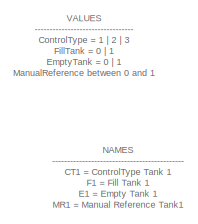
[diagram: root canvas - part 1/2, top left region]
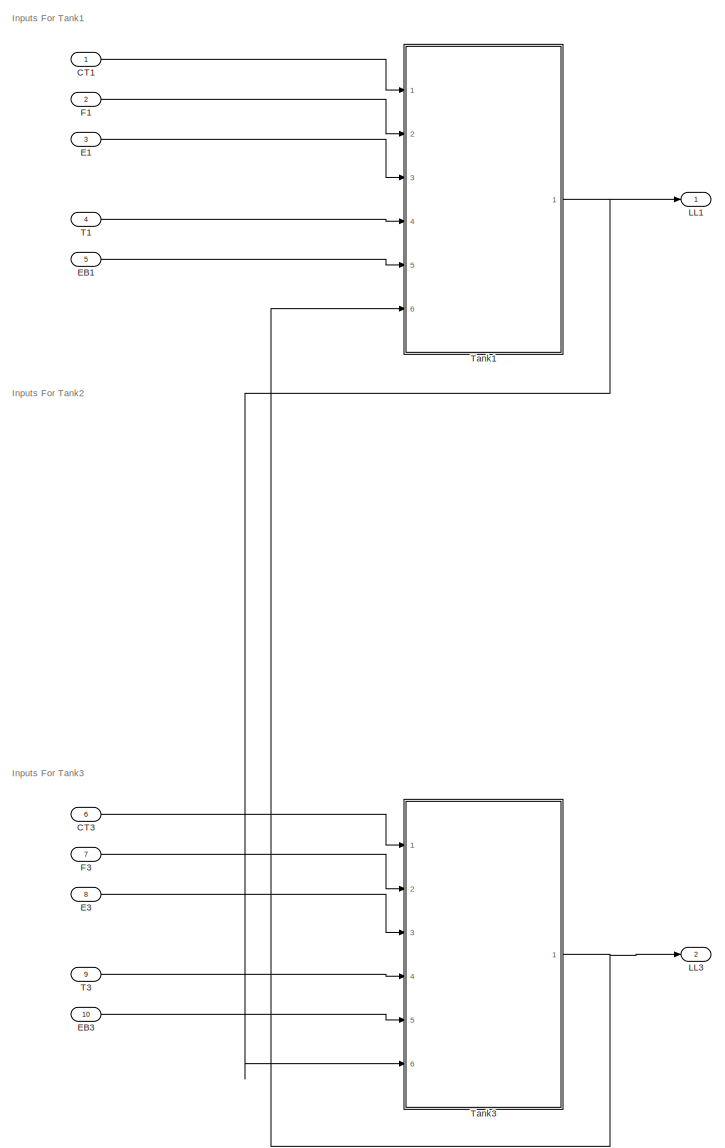
[diagram: root canvas - part 2/2, right side, full height]
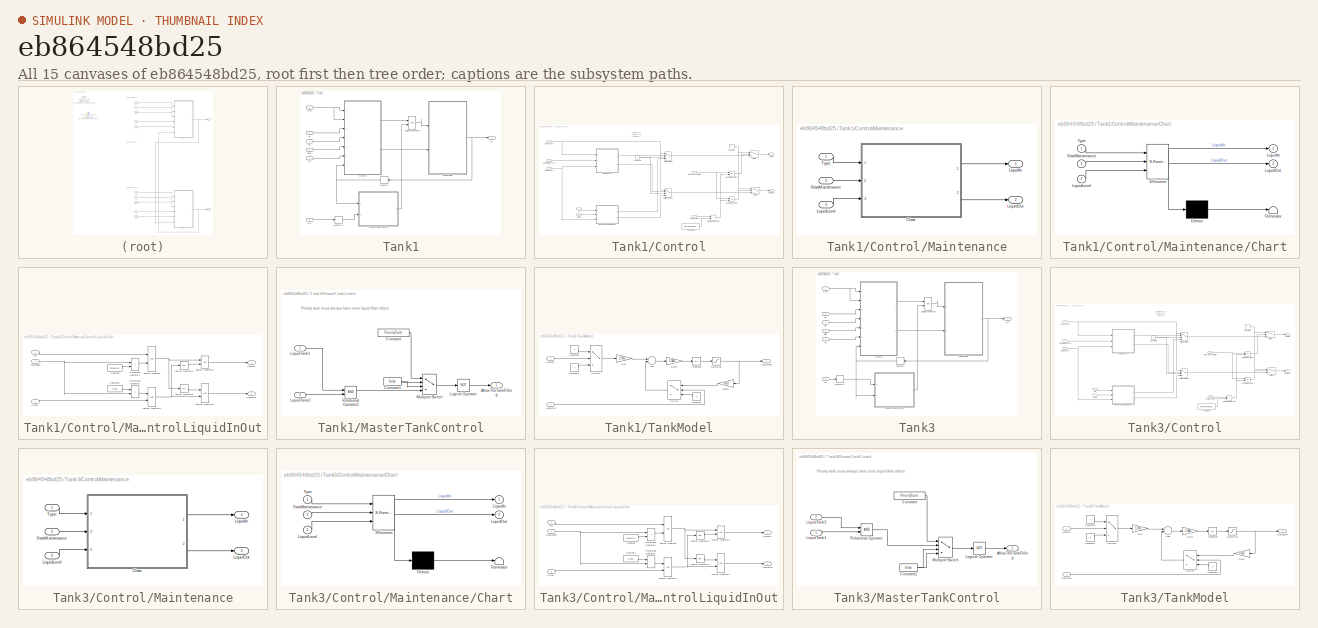
[diagram: thumbnail index - all 15 canvases of the model, root first then tree order]
MODEL slx_eb864548bd25
KIND model
CONFIG AbsTol = auto
CONFIG EnableMultiTasking = off
CONFIG FixedStep = 0.1
CONFIG MaxStep = auto
CONFIG MinStep = auto
CONFIG RelTol = 1e-3
CONFIG SampleTimeConstraint = Unconstrained
CONFIG Solver = FixedStepAuto
CONFIG SolverName = FixedStepAuto
CONFIG StartTime = 0.0
CONFIG StopTime = 300
BLOCK [Inport] CT1
  IconDisplay = Port number
BLOCK [Inport] CT3
  IconDisplay = Port number
  Port = 6
BLOCK [Inport] E1
  IconDisplay = Port number
  Port = 3
BLOCK [Inport] E3
  IconDisplay = Port number
  Port = 8
BLOCK [Inport] EB1
  IconDisplay = Port number
  Port = 5
BLOCK [Inport] EB3
  IconDisplay = Port number
  Port = 10
BLOCK [Inport] F1
  IconDisplay = Port number
  Port = 2
BLOCK [Inport] F3
  IconDisplay = Port number
  Port = 7
BLOCK [Outport] LL1
  IconDisplay = Port number
BLOCK [Outport] LL3
  IconDisplay = Port number
  Port = 2
BLOCK [Inport] T1
  IconDisplay = Port number
  Port = 4
BLOCK [Inport] T3
  IconDisplay = Port number
  Port = 9
BLOCK [SubSystem] Tank1
  Ports = [6, 1]
  RequestExecContextInheritance = off
BLOCK [Inport] Tank1/CT1
  IconDisplay = Port number
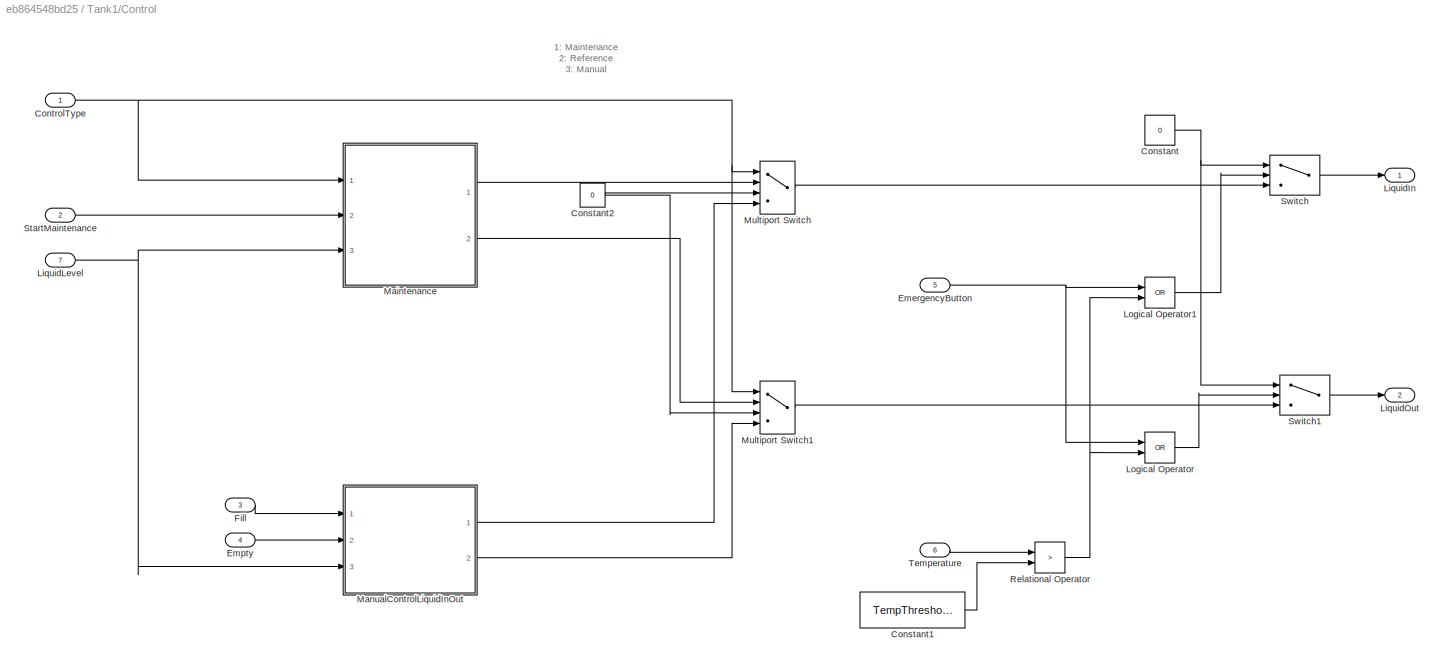
BLOCK [SubSystem] Tank1/Control
  Ports = [7, 2]
  RequestExecContextInheritance = off
BLOCK [Constant] Tank1/Control/Constant
  Value = 0
BLOCK [Constant] Tank1/Control/Constant1
  Value = TempThreshold
BLOCK [Constant] Tank1/Control/Constant2
  Value = 0
BLOCK [Inport] Tank1/Control/ControlType
  IconDisplay = Port number
BLOCK [Inport] Tank1/Control/EmergencyButton
  IconDisplay = Port number
  Port = 5
BLOCK [Inport] Tank1/Control/Empty
  IconDisplay = Port number
  Port = 4
BLOCK [Inport] Tank1/Control/Fill
  IconDisplay = Port number
  Port = 3
BLOCK [Outport] Tank1/Control/LiquidIn
  IconDisplay = Port number
BLOCK [Inport] Tank1/Control/LiquidLevel
  IconDisplay = Port number
  Port = 7
BLOCK [Outport] Tank1/Control/LiquidOut
  IconDisplay = Port number
  Port = 2
BLOCK [Logic] Tank1/Control/Logical Operator
  AllPortsSameDT = off
  Operator = OR
  OutDataTypeStr = boolean
  Ports = [2, 1]
BLOCK [Logic] Tank1/Control/Logical Operator1
  AllPortsSameDT = off
  Operator = OR
  OutDataTypeStr = boolean
  Ports = [2, 1]
BLOCK [SubSystem] Tank1/Control/Maintenance
  Ports = [3, 2]
  RequestExecContextInheritance = off
BLOCK [SubSystem] Tank1/Control/Maintenance/Chart
  ErrorFcn = Stateflow.Translate.translate
  PermitHierarchicalResolution = ExplicitOnly
  Ports = [3, 2]
  RequestExecContextInheritance = off
  SFBlockType = Chart
  TreatAsAtomicUnit = on
BLOCK [Demux] Tank1/Control/Maintenance/Chart/ Demux 
  Outputs = 1
  Ports = [1, 1]
BLOCK [S-Function] Tank1/Control/Maintenance/Chart/ SFunction 
  EnableBusSupport = on
  FunctionName = sf_sfun
  Parameters = hmax
  PortCounts = [3 3]
  Ports = [3, 3]
  SFcnIsStateOwnerBlock = off
  SFunctionDeploymentMode = off
  Tag = Stateflow S-Function c00005 3
BLOCK [Terminator] Tank1/Control/Maintenance/Chart/ Terminator 
BLOCK [Outport] Tank1/Control/Maintenance/Chart/LiquidIn
  IconDisplay = Port number
BLOCK [Inport] Tank1/Control/Maintenance/Chart/LiquidLevel
  IconDisplay = Port number
  Port = 3
BLOCK [Outport] Tank1/Control/Maintenance/Chart/LiquidOut
  IconDisplay = Port number
  Port = 2
BLOCK [Inport] Tank1/Control/Maintenance/Chart/StartMaintenance
  IconDisplay = Port number
  Port = 2
BLOCK [Inport] Tank1/Control/Maintenance/Chart/Type
  IconDisplay = Port number
BLOCK [Outport] Tank1/Control/Maintenance/LiquidIn
  IconDisplay = Port number
BLOCK [Inport] Tank1/Control/Maintenance/LiquidLevel
  IconDisplay = Port number
  Port = 3
BLOCK [Outport] Tank1/Control/Maintenance/LiquidOut
  IconDisplay = Port number
  Port = 2
BLOCK [Inport] Tank1/Control/Maintenance/StartMaintenance
  IconDisplay = Port number
  Port = 2
BLOCK [Inport] Tank1/Control/Maintenance/Type
  IconDisplay = Port number
BLOCK [SubSystem] Tank1/Control/ManualControlLiquidInOut
  Ports = [3, 2]
  RequestExecContextInheritance = off
BLOCK [Constant] Tank1/Control/ManualControlLiquidInOut/Constant
  Value = hmax*0.9
BLOCK [Constant] Tank1/Control/ManualControlLiquidInOut/Constant1
  Value = 0.001
BLOCK [Inport] Tank1/Control/ManualControlLiquidInOut/Empty
  IconDisplay = Port number
  Port = 2
BLOCK [Inport] Tank1/Control/ManualControlLiquidInOut/Fill
  IconDisplay = Port number
BLOCK [Outport] Tank1/Control/ManualControlLiquidInOut/LiquidIn
  IconDisplay = Port number
BLOCK [Inport] Tank1/Control/ManualControlLiquidInOut/LiquidLevel
  IconDisplay = Port number
  Port = 3
BLOCK [Outport] Tank1/Control/ManualControlLiquidInOut/LiquidOut
  IconDisplay = Port number
  Port = 2
BLOCK [Logic] Tank1/Control/ManualControlLiquidInOut/Logical Operator
  AllPortsSameDT = off
  OutDataTypeStr = boolean
  Ports = [2, 1]
BLOCK [Logic] Tank1/Control/ManualControlLiquidInOut/Logical Operator1
  AllPortsSameDT = off
  OutDataTypeStr = boolean
  Ports = [2, 1]
BLOCK [Logic] Tank1/Control/ManualControlLiquidInOut/Logical Operator2
  AllPortsSameDT = off
  OutDataTypeStr = boolean
  Ports = [2, 1]
BLOCK [Logic] Tank1/Control/ManualControlLiquidInOut/Logical Operator3
  AllPortsSameDT = off
  Operator = NOT
  OutDataTypeStr = boolean
  Ports = [1, 1]
BLOCK [Logic] Tank1/Control/ManualControlLiquidInOut/Logical Operator4
  AllPortsSameDT = off
  OutDataTypeStr = boolean
  Ports = [2, 1]
BLOCK [Logic] Tank1/Control/ManualControlLiquidInOut/Logical Operator5
  AllPortsSameDT = off
  Operator = NOT
  OutDataTypeStr = boolean
  Ports = [1, 1]
BLOCK [RelationalOperator] Tank1/Control/ManualControlLiquidInOut/Relational Operator1
  InputSameDT = off
  Operator = <
  OutDataTypeStr = boolean
  Ports = [2, 1]
  RndMeth = Simplest
BLOCK [RelationalOperator] Tank1/Control/ManualControlLiquidInOut/Relational Operator2
  InputSameDT = off
  Operator = <
  OutDataTypeStr = boolean
  Ports = [2, 1]
  RndMeth = Simplest
BLOCK [MultiPortSwitch] Tank1/Control/Multiport Switch
  InputSameDT = off
  Ports = [4, 1]
  SaturateOnIntegerOverflow = off
BLOCK [MultiPortSwitch] Tank1/Control/Multiport Switch1
  InputSameDT = off
  Ports = [4, 1]
  SaturateOnIntegerOverflow = off
BLOCK [RelationalOperator] Tank1/Control/Relational Operator
  InputSameDT = off
  Operator = >
  OutDataTypeStr = boolean
  Ports = [2, 1]
  RndMeth = Simplest
BLOCK [Inport] Tank1/Control/StartMaintenance
  IconDisplay = Port number
  Port = 2
BLOCK [Switch] Tank1/Control/Switch
  Criteria = u2 > Threshold
  InputSameDT = off
  SaturateOnIntegerOverflow = off
BLOCK [Switch] Tank1/Control/Switch1
  Criteria = u2 > Threshold
  InputSameDT = off
  SaturateOnIntegerOverflow = off
BLOCK [Inport] Tank1/Control/Temperature
  IconDisplay = Port number
  Port = 6
BLOCK [Inport] Tank1/E1
  IconDisplay = Port number
  Port = 3
BLOCK [Inport] Tank1/EB1
  IconDisplay = Port number
  Port = 5
BLOCK [Inport] Tank1/F1
  IconDisplay = Port number
  Port = 2
BLOCK [Outport] Tank1/LL1
  IconDisplay = Port number
BLOCK [Inport] Tank1/LL3
  IconDisplay = Port number
  Port = 6
BLOCK [Logic] Tank1/Logical Operator
  AllPortsSameDT = off
  OutDataTypeStr = boolean
  Ports = [2, 1]
BLOCK [SubSystem] Tank1/MasterTankControl
  Ports = [2, 1]
  RequestExecContextInheritance = off
BLOCK [Outport] Tank1/MasterTankControl/AllowTheTankFilling
  IconDisplay = Port number
BLOCK [Constant] Tank1/MasterTankControl/Constant
  Value = PriorityTank
BLOCK [Constant] Tank1/MasterTankControl/Constant1
  Value = false
BLOCK [Inport] Tank1/MasterTankControl/LiquidTank1
  IconDisplay = Port number
BLOCK [Inport] Tank1/MasterTankControl/LiquidTank3
  IconDisplay = Port number
  Port = 2
BLOCK [Logic] Tank1/MasterTankControl/Logical Operator
  AllPortsSameDT = off
  Operator = NOT
  OutDataTypeStr = boolean
  Ports = [1, 1]
BLOCK [MultiPortSwitch] Tank1/MasterTankControl/Multiport Switch
  InputSameDT = off
  Ports = [4, 1]
  SaturateOnIntegerOverflow = off
BLOCK [RelationalOperator] Tank1/MasterTankControl/Relational Operator1
  InputSameDT = off
  OutDataTypeStr = boolean
  Ports = [2, 1]
  RndMeth = Simplest
BLOCK [Memory] Tank1/Memory
BLOCK [Memory] Tank1/Memory2
BLOCK [Inport] Tank1/T1
  IconDisplay = Port number
  Port = 4
BLOCK [SubSystem] Tank1/TankModel
  Ports = [2, 1]
  RequestExecContextInheritance = off
BLOCK [Sum] Tank1/TankModel/Add1
  InputSameDT = off
  Inputs = +-
  OutDataTypeStr = Inherit: Inherit via internal rule
  Ports = [2, 1]
  SaturateOnIntegerOverflow = off
BLOCK [Constant] Tank1/TankModel/Constant1
  Value = 0
BLOCK [Constant] Tank1/TankModel/Constant2
  Value = 0
BLOCK [Constant] Tank1/TankModel/Constant3
BLOCK [Gain] Tank1/TankModel/Gain
  Gain = 1/R1
  OutDataTypeStr = Inherit: Inherit via internal rule
  ParamDataTypeStr = Inherit: Inherit via internal rule
  SaturateOnIntegerOverflow = off
BLOCK [Gain] Tank1/TankModel/Gain1
  Gain = 1/A1
  OutDataTypeStr = Inherit: Inherit via internal rule
  ParamDataTypeStr = Inherit: Inherit via internal rule
  SaturateOnIntegerOverflow = off
BLOCK [Gain] Tank1/TankModel/Gain2
  Gain = 1/R2
  OutDataTypeStr = Inherit: Inherit via internal rule
  ParamDataTypeStr = Inherit: Inherit via internal rule
  SaturateOnIntegerOverflow = off
BLOCK [Integrator] Tank1/TankModel/Integrator
  Ports = [1, 1]
BLOCK [Inport] Tank1/TankModel/LiquidIn
  IconDisplay = Port number
BLOCK [Outport] Tank1/TankModel/LiquidLevel
  IconDisplay = Port number
BLOCK [Inport] Tank1/TankModel/LiquidOut
  IconDisplay = Port number
  Port = 2
BLOCK [Saturate] Tank1/TankModel/Saturation
  InputPortMap = u0
  LowerLimit = 0
  Ports = [1, 1]
  UpperLimit = hmax
BLOCK [Switch] Tank1/TankModel/Switch
  Criteria = u2 ~= 0
  InputSameDT = off
  SaturateOnIntegerOverflow = off
BLOCK [Switch] Tank1/TankModel/Switch1
  Criteria = u2 ~= 0
  InputSameDT = off
  SaturateOnIntegerOverflow = off
BLOCK [SubSystem] Tank3
  Ports = [6, 1]
  RequestExecContextInheritance = off
BLOCK [Inport] Tank3/CT3
  IconDisplay = Port number
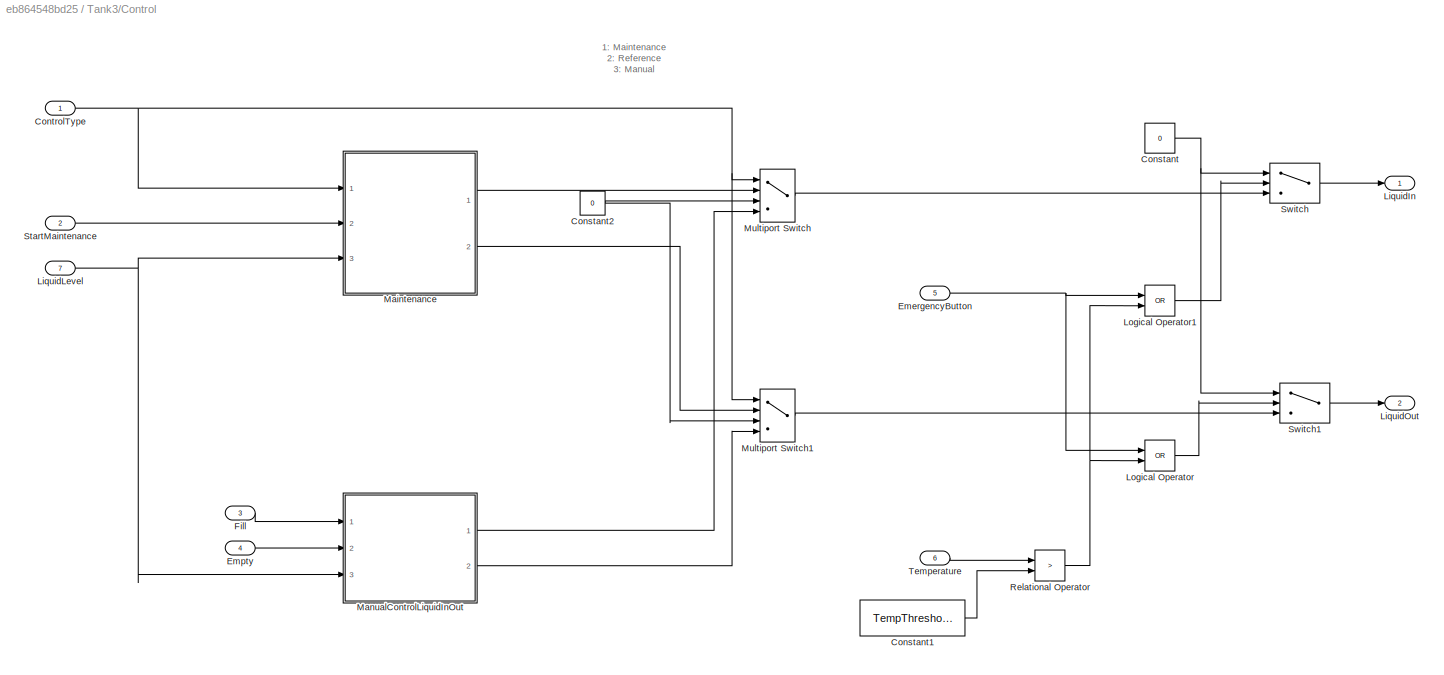
BLOCK [SubSystem] Tank3/Control
  Ports = [7, 2]
  RequestExecContextInheritance = off
BLOCK [Constant] Tank3/Control/Constant
  Value = 0
BLOCK [Constant] Tank3/Control/Constant1
  Value = TempThreshold
BLOCK [Constant] Tank3/Control/Constant2
  Value = 0
BLOCK [Inport] Tank3/Control/ControlType
  IconDisplay = Port number
BLOCK [Inport] Tank3/Control/EmergencyButton
  IconDisplay = Port number
  Port = 5
BLOCK [Inport] Tank3/Control/Empty
  IconDisplay = Port number
  Port = 4
BLOCK [Inport] Tank3/Control/Fill
  IconDisplay = Port number
  Port = 3
BLOCK [Outport] Tank3/Control/LiquidIn
  IconDisplay = Port number
BLOCK [Inport] Tank3/Control/LiquidLevel
  IconDisplay = Port number
  Port = 7
BLOCK [Outport] Tank3/Control/LiquidOut
  IconDisplay = Port number
  Port = 2
BLOCK [Logic] Tank3/Control/Logical Operator
  AllPortsSameDT = off
  Operator = OR
  OutDataTypeStr = boolean
  Ports = [2, 1]
BLOCK [Logic] Tank3/Control/Logical Operator1
  AllPortsSameDT = off
  Operator = OR
  OutDataTypeStr = boolean
  Ports = [2, 1]
BLOCK [SubSystem] Tank3/Control/Maintenance
  Ports = [3, 2]
  RequestExecContextInheritance = off
BLOCK [SubSystem] Tank3/Control/Maintenance/Chart
  ErrorFcn = Stateflow.Translate.translate
  PermitHierarchicalResolution = ExplicitOnly
  Ports = [3, 2]
  RequestExecContextInheritance = off
  SFBlockType = Chart
  TreatAsAtomicUnit = on
BLOCK [Demux] Tank3/Control/Maintenance/Chart/ Demux 
  Outputs = 1
  Ports = [1, 1]
BLOCK [S-Function] Tank3/Control/Maintenance/Chart/ SFunction 
  EnableBusSupport = on
  FunctionName = sf_sfun
  Parameters = hmax
  PortCounts = [3 3]
  Ports = [3, 3]
  SFcnIsStateOwnerBlock = off
  SFunctionDeploymentMode = off
  Tag = Stateflow S-Function c00005 1
BLOCK [Terminator] Tank3/Control/Maintenance/Chart/ Terminator 
BLOCK [Outport] Tank3/Control/Maintenance/Chart/LiquidIn
  IconDisplay = Port number
BLOCK [Inport] Tank3/Control/Maintenance/Chart/LiquidLevel
  IconDisplay = Port number
  Port = 3
BLOCK [Outport] Tank3/Control/Maintenance/Chart/LiquidOut
  IconDisplay = Port number
  Port = 2
BLOCK [Inport] Tank3/Control/Maintenance/Chart/StartMaintenance
  IconDisplay = Port number
  Port = 2
BLOCK [Inport] Tank3/Control/Maintenance/Chart/Type
  IconDisplay = Port number
BLOCK [Outport] Tank3/Control/Maintenance/LiquidIn
  IconDisplay = Port number
BLOCK [Inport] Tank3/Control/Maintenance/LiquidLevel
  IconDisplay = Port number
  Port = 3
BLOCK [Outport] Tank3/Control/Maintenance/LiquidOut
  IconDisplay = Port number
  Port = 2
BLOCK [Inport] Tank3/Control/Maintenance/StartMaintenance
  IconDisplay = Port number
  Port = 2
BLOCK [Inport] Tank3/Control/Maintenance/Type
  IconDisplay = Port number
BLOCK [SubSystem] Tank3/Control/ManualControlLiquidInOut
  Ports = [3, 2]
  RequestExecContextInheritance = off
BLOCK [Constant] Tank3/Control/ManualControlLiquidInOut/Constant
  Value = hmax*0.9
BLOCK [Constant] Tank3/Control/ManualControlLiquidInOut/Constant1
  Value = 0.001
BLOCK [Inport] Tank3/Control/ManualControlLiquidInOut/Empty
  IconDisplay = Port number
  Port = 2
BLOCK [Inport] Tank3/Control/ManualControlLiquidInOut/Fill
  IconDisplay = Port number
BLOCK [Outport] Tank3/Control/ManualControlLiquidInOut/LiquidIn
  IconDisplay = Port number
BLOCK [Inport] Tank3/Control/ManualControlLiquidInOut/LiquidLevel
  IconDisplay = Port number
  Port = 3
BLOCK [Outport] Tank3/Control/ManualControlLiquidInOut/LiquidOut
  IconDisplay = Port number
  Port = 2
BLOCK [Logic] Tank3/Control/ManualControlLiquidInOut/Logical Operator
  AllPortsSameDT = off
  OutDataTypeStr = boolean
  Ports = [2, 1]
BLOCK [Logic] Tank3/Control/ManualControlLiquidInOut/Logical Operator1
  AllPortsSameDT = off
  OutDataTypeStr = boolean
  Ports = [2, 1]
BLOCK [Logic] Tank3/Control/ManualControlLiquidInOut/Logical Operator2
  AllPortsSameDT = off
  OutDataTypeStr = boolean
  Ports = [2, 1]
BLOCK [Logic] Tank3/Control/ManualControlLiquidInOut/Logical Operator3
  AllPortsSameDT = off
  Operator = NOT
  OutDataTypeStr = boolean
  Ports = [1, 1]
BLOCK [Logic] Tank3/Control/ManualControlLiquidInOut/Logical Operator4
  AllPortsSameDT = off
  OutDataTypeStr = boolean
  Ports = [2, 1]
BLOCK [Logic] Tank3/Control/ManualControlLiquidInOut/Logical Operator5
  AllPortsSameDT = off
  Operator = NOT
  OutDataTypeStr = boolean
  Ports = [1, 1]
BLOCK [RelationalOperator] Tank3/Control/ManualControlLiquidInOut/Relational Operator1
  InputSameDT = off
  Operator = <
  OutDataTypeStr = boolean
  Ports = [2, 1]
  RndMeth = Simplest
BLOCK [RelationalOperator] Tank3/Control/ManualControlLiquidInOut/Relational Operator2
  InputSameDT = off
  Operator = <
  OutDataTypeStr = boolean
  Ports = [2, 1]
  RndMeth = Simplest
BLOCK [MultiPortSwitch] Tank3/Control/Multiport Switch
  InputSameDT = off
  Ports = [4, 1]
  SaturateOnIntegerOverflow = off
BLOCK [MultiPortSwitch] Tank3/Control/Multiport Switch1
  InputSameDT = off
  Ports = [4, 1]
  SaturateOnIntegerOverflow = off
BLOCK [RelationalOperator] Tank3/Control/Relational Operator
  InputSameDT = off
  Operator = >
  OutDataTypeStr = boolean
  Ports = [2, 1]
  RndMeth = Simplest
BLOCK [Inport] Tank3/Control/StartMaintenance
  IconDisplay = Port number
  Port = 2
BLOCK [Switch] Tank3/Control/Switch
  Criteria = u2 > Threshold
  InputSameDT = off
  SaturateOnIntegerOverflow = off
BLOCK [Switch] Tank3/Control/Switch1
  Criteria = u2 > Threshold
  InputSameDT = off
  SaturateOnIntegerOverflow = off
BLOCK [Inport] Tank3/Control/Temperature
  IconDisplay = Port number
  Port = 6
BLOCK [Inport] Tank3/E3
  IconDisplay = Port number
  Port = 3
BLOCK [Inport] Tank3/EB3
  IconDisplay = Port number
  Port = 5
BLOCK [Inport] Tank3/F3
  IconDisplay = Port number
  Port = 2
BLOCK [Inport] Tank3/LL1
  IconDisplay = Port number
  Port = 6
BLOCK [Outport] Tank3/LL3
  IconDisplay = Port number
BLOCK [Logic] Tank3/Logical Operator
  AllPortsSameDT = off
  OutDataTypeStr = boolean
  Ports = [2, 1]
BLOCK [SubSystem] Tank3/MasterTankControl
  Ports = [2, 1]
  RequestExecContextInheritance = off
BLOCK [Outport] Tank3/MasterTankControl/AllowTheTankFilling
  IconDisplay = Port number
BLOCK [Constant] Tank3/MasterTankControl/Constant
  Value = PriorityTank
BLOCK [Constant] Tank3/MasterTankControl/Constant1
  Value = false
BLOCK [Inport] Tank3/MasterTankControl/LiquidTank1
  IconDisplay = Port number
BLOCK [Inport] Tank3/MasterTankControl/LiquidTank3
  IconDisplay = Port number
  Port = 2
BLOCK [Logic] Tank3/MasterTankControl/Logical Operator
  AllPortsSameDT = off
  Operator = NOT
  OutDataTypeStr = boolean
  Ports = [1, 1]
BLOCK [MultiPortSwitch] Tank3/MasterTankControl/Multiport Switch
  InputSameDT = off
  Ports = [4, 1]
  SaturateOnIntegerOverflow = off
BLOCK [RelationalOperator] Tank3/MasterTankControl/Relational Operator
  InputSameDT = off
  OutDataTypeStr = boolean
  Ports = [2, 1]
  RndMeth = Simplest
BLOCK [Memory] Tank3/Memory
BLOCK [Memory] Tank3/Memory1
BLOCK [Inport] Tank3/T3
  IconDisplay = Port number
  Port = 4
BLOCK [SubSystem] Tank3/TankModel
  Ports = [2, 1]
  RequestExecContextInheritance = off
BLOCK [Sum] Tank3/TankModel/Add1
  InputSameDT = off
  Inputs = +-
  OutDataTypeStr = Inherit: Inherit via internal rule
  Ports = [2, 1]
  SaturateOnIntegerOverflow = off
BLOCK [Constant] Tank3/TankModel/Constant1
  Value = 0
BLOCK [Constant] Tank3/TankModel/Constant2
  Value = 0
BLOCK [Constant] Tank3/TankModel/Constant3
BLOCK [Gain] Tank3/TankModel/Gain
  Gain = 1/R1
  OutDataTypeStr = Inherit: Inherit via internal rule
  ParamDataTypeStr = Inherit: Inherit via internal rule
  SaturateOnIntegerOverflow = off
BLOCK [Gain] Tank3/TankModel/Gain1
  Gain = 1/A1
  OutDataTypeStr = Inherit: Inherit via internal rule
  ParamDataTypeStr = Inherit: Inherit via internal rule
  SaturateOnIntegerOverflow = off
BLOCK [Gain] Tank3/TankModel/Gain2
  Gain = 1/R2
  OutDataTypeStr = Inherit: Inherit via internal rule
  ParamDataTypeStr = Inherit: Inherit via internal rule
  SaturateOnIntegerOverflow = off
BLOCK [Integrator] Tank3/TankModel/Integrator
  Ports = [1, 1]
BLOCK [Inport] Tank3/TankModel/LiquidIn
  IconDisplay = Port number
BLOCK [Outport] Tank3/TankModel/LiquidLevel
  IconDisplay = Port number
BLOCK [Inport] Tank3/TankModel/LiquidOut
  IconDisplay = Port number
  Port = 2
BLOCK [Saturate] Tank3/TankModel/Saturation
  InputPortMap = u0
  LowerLimit = 0
  Ports = [1, 1]
  UpperLimit = hmax
BLOCK [Switch] Tank3/TankModel/Switch
  Criteria = u2 ~= 0
  InputSameDT = off
  SaturateOnIntegerOverflow = off
BLOCK [Switch] Tank3/TankModel/Switch1
  Criteria = u2 ~= 0
  InputSameDT = off
  SaturateOnIntegerOverflow = off
ANNOTATION (root): Inputs For Tank1
ANNOTATION (root): Inputs For Tank2
ANNOTATION (root): Inputs For Tank3
ANNOTATION (root): NAMES -------------------------------------------- CT1 = ControlType Tank 1 F1 = Fill Tank 1 E1 = Empty Tank 1 MR1 = Manual Reference Tank1 T1 = Temperature Tank 1 EB1 = Emergency Button Tank 1 LL1 = Liquid Level 1
ANNOTATION (root): VALUES --------------------------------- ControlType = 1 | 2 | 3 FillTank = 0 | 1 EmptyTank = 0 | 1 ManualReference between 0 and 1 Tempreature between 0 and 100 EmergencyButton = 0 | 1 LiquidLevel between 0 and 1 (hmax)
ANNOTATION Tank1/Control: 1: Maintenance 2: Reference 3: Manual
ANNOTATION Tank1/MasterTankControl: Priority tank must always have more liquid than others
ANNOTATION Tank3/Control: 1: Maintenance 2: Reference 3: Manual
ANNOTATION Tank3/MasterTankControl: Priority tank must always have more liquid than others
LINE CT1:1 -> Tank1:1
LINE CT3:1 -> Tank3:1
LINE E1:1 -> Tank1:3
LINE E3:1 -> Tank3:3
LINE EB1:1 -> Tank1:5
LINE EB3:1 -> Tank3:5
LINE F1:1 -> Tank1:2
LINE F3:1 -> Tank3:2
LINE T1:1 -> Tank1:4
LINE T3:1 -> Tank3:4
NET Tank1/CT1:1 -> Tank1/Control:1, Tank1/Control:2
LINE Tank1/Control/Constant1:1 -> Tank1/Control/Relational Operator:2
NET Tank1/Control/Constant2:1 -> Tank1/Control/Multiport Switch1:3, Tank1/Control/Multiport Switch:3
NET Tank1/Control/Constant:1 -> Tank1/Control/Switch1:1, Tank1/Control/Switch:1
NET Tank1/Control/ControlType:1 -> Tank1/Control/Maintenance:1, Tank1/Control/Multiport Switch1:1, Tank1/Control/Multiport Switch:1
NET Tank1/Control/EmergencyButton:1 -> Tank1/Control/Logical Operator1:1, Tank1/Control/Logical Operator:1
LINE Tank1/Control/Empty:1 -> Tank1/Control/ManualControlLiquidInOut:2
LINE Tank1/Control/Fill:1 -> Tank1/Control/ManualControlLiquidInOut:1
NET Tank1/Control/LiquidLevel:1 -> Tank1/Control/Maintenance:3, Tank1/Control/ManualControlLiquidInOut:3
LINE Tank1/Control/Logical Operator1:1 -> Tank1/Control/Switch:2
LINE Tank1/Control/Logical Operator:1 -> Tank1/Control/Switch1:2
LINE Tank1/Control/Maintenance/Chart:1 -> Tank1/Control/Maintenance/LiquidIn:1
LINE Tank1/Control/Maintenance/Chart:2 -> Tank1/Control/Maintenance/LiquidOut:1
LINE Tank1/Control/Maintenance/LiquidLevel:1 -> Tank1/Control/Maintenance/Chart:3
LINE Tank1/Control/Maintenance/StartMaintenance:1 -> Tank1/Control/Maintenance/Chart:2
LINE Tank1/Control/Maintenance/Type:1 -> Tank1/Control/Maintenance/Chart:1
LINE Tank1/Control/Maintenance:1 -> Tank1/Control/Multiport Switch:2
LINE Tank1/Control/Maintenance:2 -> Tank1/Control/Multiport Switch1:2
LINE Tank1/Control/ManualControlLiquidInOut/Constant1:1 -> Tank1/Control/ManualControlLiquidInOut/Relational Operator2:1
LINE Tank1/Control/ManualControlLiquidInOut/Constant:1 -> Tank1/Control/ManualControlLiquidInOut/Relational Operator1:2
LINE Tank1/Control/ManualControlLiquidInOut/Empty:1 -> Tank1/Control/ManualControlLiquidInOut/Logical Operator1:2
LINE Tank1/Control/ManualControlLiquidInOut/Fill:1 -> Tank1/Control/ManualControlLiquidInOut/Logical Operator:1
NET Tank1/Control/ManualControlLiquidInOut/LiquidLevel:1 -> Tank1/Control/ManualControlLiquidInOut/Relational Operator1:1, Tank1/Control/ManualControlLiquidInOut/Relational Operator2:2
NET Tank1/Control/ManualControlLiquidInOut/Logical Operator1:1 -> Tank1/Control/ManualControlLiquidInOut/Logical Operator3:1, Tank1/Control/ManualControlLiquidInOut/Logical Operator4:2
LINE Tank1/Control/ManualControlLiquidInOut/Logical Operator2:1 -> Tank1/Control/ManualControlLiquidInOut/LiquidIn:1
LINE Tank1/Control/ManualControlLiquidInOut/Logical Operator3:1 -> Tank1/Control/ManualControlLiquidInOut/Logical Operator2:2
LINE Tank1/Control/ManualControlLiquidInOut/Logical Operator4:1 -> Tank1/Control/ManualControlLiquidInOut/LiquidOut:1
LINE Tank1/Control/ManualControlLiquidInOut/Logical Operator5:1 -> Tank1/Control/ManualControlLiquidInOut/Logical Operator4:1
NET Tank1/Control/ManualControlLiquidInOut/Logical Operator:1 -> Tank1/Control/ManualControlLiquidInOut/Logical Operator2:1, Tank1/Control/ManualControlLiquidInOut/Logical Operator5:1
LINE Tank1/Control/ManualControlLiquidInOut/Relational Operator1:1 -> Tank1/Control/ManualControlLiquidInOut/Logical Operator:2
LINE Tank1/Control/ManualControlLiquidInOut/Relational Operator2:1 -> Tank1/Control/ManualControlLiquidInOut/Logical Operator1:1
LINE Tank1/Control/ManualControlLiquidInOut:1 -> Tank1/Control/Multiport Switch:4
LINE Tank1/Control/ManualControlLiquidInOut:2 -> Tank1/Control/Multiport Switch1:4
LINE Tank1/Control/Multiport Switch1:1 -> Tank1/Control/Switch1:3
LINE Tank1/Control/Multiport Switch:1 -> Tank1/Control/Switch:3
NET Tank1/Control/Relational Operator:1 -> Tank1/Control/Logical Operator1:2, Tank1/Control/Logical Operator:2
LINE Tank1/Control/StartMaintenance:1 -> Tank1/Control/Maintenance:2
LINE Tank1/Control/Switch1:1 -> Tank1/Control/LiquidOut:1
LINE Tank1/Control/Switch:1 -> Tank1/Control/LiquidIn:1
LINE Tank1/Control/Temperature:1 -> Tank1/Control/Relational Operator:1
LINE Tank1/Control:1 -> Tank1/Logical Operator:1
LINE Tank1/Control:2 -> Tank1/TankModel:2
LINE Tank1/E1:1 -> Tank1/Control:4
LINE Tank1/EB1:1 -> Tank1/Control:5
LINE Tank1/F1:1 -> Tank1/Control:3
LINE Tank1/LL3:1 -> Tank1/Memory2:1
LINE Tank1/Logical Operator:1 -> Tank1/TankModel:1
NET Tank1/MasterTankControl/Constant1:1 -> Tank1/MasterTankControl/Multiport Switch:2, Tank1/MasterTankControl/Multiport Switch:3
LINE Tank1/MasterTankControl/Constant:1 -> Tank1/MasterTankControl/Multiport Switch:1
LINE Tank1/MasterTankControl/LiquidTank1:1 -> Tank1/MasterTankControl/Relational Operator1:1
LINE Tank1/MasterTankControl/LiquidTank3:1 -> Tank1/MasterTankControl/Relational Operator1:2
LINE Tank1/MasterTankControl/Logical Operator:1 -> Tank1/MasterTankControl/AllowTheTankFilling:1
LINE Tank1/MasterTankControl/Multiport Switch:1 -> Tank1/MasterTankControl/Logical Operator:1
LINE Tank1/MasterTankControl/Relational Operator1:1 -> Tank1/MasterTankControl/Multiport Switch:4
LINE Tank1/MasterTankControl:1 -> Tank1/Logical Operator:2
LINE Tank1/Memory2:1 -> Tank1/MasterTankControl:2
NET Tank1/Memory:1 -> Tank1/Control:7, Tank1/MasterTankControl:1
LINE Tank1/T1:1 -> Tank1/Control:6
LINE Tank1/TankModel/Add1:1 -> Tank1/TankModel/Gain1:1
LINE Tank1/TankModel/Constant1:1 -> Tank1/TankModel/Switch1:3
LINE Tank1/TankModel/Constant2:1 -> Tank1/TankModel/Switch:3
LINE Tank1/TankModel/Constant3:1 -> Tank1/TankModel/Switch1:1
LINE Tank1/TankModel/Gain1:1 -> Tank1/TankModel/Integrator:1
LINE Tank1/TankModel/Gain2:1 -> Tank1/TankModel/Switch:1
LINE Tank1/TankModel/Gain:1 -> Tank1/TankModel/Add1:1
LINE Tank1/TankModel/Integrator:1 -> Tank1/TankModel/Saturation:1
LINE Tank1/TankModel/LiquidIn:1 -> Tank1/TankModel/Switch1:2
LINE Tank1/TankModel/LiquidOut:1 -> Tank1/TankModel/Switch:2
NET Tank1/TankModel/Saturation:1 -> Tank1/TankModel/Gain2:1, Tank1/TankModel/LiquidLevel:1
LINE Tank1/TankModel/Switch1:1 -> Tank1/TankModel/Gain:1
LINE Tank1/TankModel/Switch:1 -> Tank1/TankModel/Add1:2
NET Tank1/TankModel:1 -> Tank1/LL1:1, Tank1/Memory:1
NET Tank1:1 -> LL1:1, Tank3:6
NET Tank3/CT3:1 -> Tank3/Control:1, Tank3/Control:2
LINE Tank3/Control/Constant1:1 -> Tank3/Control/Relational Operator:2
NET Tank3/Control/Constant2:1 -> Tank3/Control/Multiport Switch1:3, Tank3/Control/Multiport Switch:3
NET Tank3/Control/Constant:1 -> Tank3/Control/Switch1:1, Tank3/Control/Switch:1
NET Tank3/Control/ControlType:1 -> Tank3/Control/Maintenance:1, Tank3/Control/Multiport Switch1:1, Tank3/Control/Multiport Switch:1
NET Tank3/Control/EmergencyButton:1 -> Tank3/Control/Logical Operator1:1, Tank3/Control/Logical Operator:1
LINE Tank3/Control/Empty:1 -> Tank3/Control/ManualControlLiquidInOut:2
LINE Tank3/Control/Fill:1 -> Tank3/Control/ManualControlLiquidInOut:1
NET Tank3/Control/LiquidLevel:1 -> Tank3/Control/Maintenance:3, Tank3/Control/ManualControlLiquidInOut:3
LINE Tank3/Control/Logical Operator1:1 -> Tank3/Control/Switch:2
LINE Tank3/Control/Logical Operator:1 -> Tank3/Control/Switch1:2
LINE Tank3/Control/Maintenance/Chart:1 -> Tank3/Control/Maintenance/LiquidIn:1
LINE Tank3/Control/Maintenance/Chart:2 -> Tank3/Control/Maintenance/LiquidOut:1
LINE Tank3/Control/Maintenance/LiquidLevel:1 -> Tank3/Control/Maintenance/Chart:3
LINE Tank3/Control/Maintenance/StartMaintenance:1 -> Tank3/Control/Maintenance/Chart:2
LINE Tank3/Control/Maintenance/Type:1 -> Tank3/Control/Maintenance/Chart:1
LINE Tank3/Control/Maintenance:1 -> Tank3/Control/Multiport Switch:2
LINE Tank3/Control/Maintenance:2 -> Tank3/Control/Multiport Switch1:2
LINE Tank3/Control/ManualControlLiquidInOut/Constant1:1 -> Tank3/Control/ManualControlLiquidInOut/Relational Operator2:1
LINE Tank3/Control/ManualControlLiquidInOut/Constant:1 -> Tank3/Control/ManualControlLiquidInOut/Relational Operator1:2
LINE Tank3/Control/ManualControlLiquidInOut/Empty:1 -> Tank3/Control/ManualControlLiquidInOut/Logical Operator1:2
LINE Tank3/Control/ManualControlLiquidInOut/Fill:1 -> Tank3/Control/ManualControlLiquidInOut/Logical Operator:1
NET Tank3/Control/ManualControlLiquidInOut/LiquidLevel:1 -> Tank3/Control/ManualControlLiquidInOut/Relational Operator1:1, Tank3/Control/ManualControlLiquidInOut/Relational Operator2:2
NET Tank3/Control/ManualControlLiquidInOut/Logical Operator1:1 -> Tank3/Control/ManualControlLiquidInOut/Logical Operator3:1, Tank3/Control/ManualControlLiquidInOut/Logical Operator4:2
LINE Tank3/Control/ManualControlLiquidInOut/Logical Operator2:1 -> Tank3/Control/ManualControlLiquidInOut/LiquidIn:1
LINE Tank3/Control/ManualControlLiquidInOut/Logical Operator3:1 -> Tank3/Control/ManualControlLiquidInOut/Logical Operator2:2
LINE Tank3/Control/ManualControlLiquidInOut/Logical Operator4:1 -> Tank3/Control/ManualControlLiquidInOut/LiquidOut:1
LINE Tank3/Control/ManualControlLiquidInOut/Logical Operator5:1 -> Tank3/Control/ManualControlLiquidInOut/Logical Operator4:1
NET Tank3/Control/ManualControlLiquidInOut/Logical Operator:1 -> Tank3/Control/ManualControlLiquidInOut/Logical Operator2:1, Tank3/Control/ManualControlLiquidInOut/Logical Operator5:1
LINE Tank3/Control/ManualControlLiquidInOut/Relational Operator1:1 -> Tank3/Control/ManualControlLiquidInOut/Logical Operator:2
LINE Tank3/Control/ManualControlLiquidInOut/Relational Operator2:1 -> Tank3/Control/ManualControlLiquidInOut/Logical Operator1:1
LINE Tank3/Control/ManualControlLiquidInOut:1 -> Tank3/Control/Multiport Switch:4
LINE Tank3/Control/ManualControlLiquidInOut:2 -> Tank3/Control/Multiport Switch1:4
LINE Tank3/Control/Multiport Switch1:1 -> Tank3/Control/Switch1:3
LINE Tank3/Control/Multiport Switch:1 -> Tank3/Control/Switch:3
NET Tank3/Control/Relational Operator:1 -> Tank3/Control/Logical Operator1:2, Tank3/Control/Logical Operator:2
LINE Tank3/Control/StartMaintenance:1 -> Tank3/Control/Maintenance:2
LINE Tank3/Control/Switch1:1 -> Tank3/Control/LiquidOut:1
LINE Tank3/Control/Switch:1 -> Tank3/Control/LiquidIn:1
LINE Tank3/Control/Temperature:1 -> Tank3/Control/Relational Operator:1
LINE Tank3/Control:1 -> Tank3/Logical Operator:1
LINE Tank3/Control:2 -> Tank3/TankModel:2
LINE Tank3/E3:1 -> Tank3/Control:4
LINE Tank3/EB3:1 -> Tank3/Control:5
LINE Tank3/F3:1 -> Tank3/Control:3
LINE Tank3/LL1:1 -> Tank3/Memory1:1
LINE Tank3/Logical Operator:1 -> Tank3/TankModel:1
NET Tank3/MasterTankControl/Constant1:1 -> Tank3/MasterTankControl/Multiport Switch:3, Tank3/MasterTankControl/Multiport Switch:4
LINE Tank3/MasterTankControl/Constant:1 -> Tank3/MasterTankControl/Multiport Switch:1
LINE Tank3/MasterTankControl/LiquidTank1:1 -> Tank3/MasterTankControl/Relational Operator:2
LINE Tank3/MasterTankControl/LiquidTank3:1 -> Tank3/MasterTankControl/Relational Operator:1
LINE Tank3/MasterTankControl/Logical Operator:1 -> Tank3/MasterTankControl/AllowTheTankFilling:1
LINE Tank3/MasterTankControl/Multiport Switch:1 -> Tank3/MasterTankControl/Logical Operator:1
LINE Tank3/MasterTankControl/Relational Operator:1 -> Tank3/MasterTankControl/Multiport Switch:2
LINE Tank3/MasterTankControl:1 -> Tank3/Logical Operator:2
LINE Tank3/Memory1:1 -> Tank3/MasterTankControl:1
NET Tank3/Memory:1 -> Tank3/Control:7, Tank3/MasterTankControl:2
LINE Tank3/T3:1 -> Tank3/Control:6
LINE Tank3/TankModel/Add1:1 -> Tank3/TankModel/Gain1:1
LINE Tank3/TankModel/Constant1:1 -> Tank3/TankModel/Switch1:3
LINE Tank3/TankModel/Constant2:1 -> Tank3/TankModel/Switch:3
LINE Tank3/TankModel/Constant3:1 -> Tank3/TankModel/Switch1:1
LINE Tank3/TankModel/Gain1:1 -> Tank3/TankModel/Integrator:1
LINE Tank3/TankModel/Gain2:1 -> Tank3/TankModel/Switch:1
LINE Tank3/TankModel/Gain:1 -> Tank3/TankModel/Add1:1
LINE Tank3/TankModel/Integrator:1 -> Tank3/TankModel/Saturation:1
LINE Tank3/TankModel/LiquidIn:1 -> Tank3/TankModel/Switch1:2
LINE Tank3/TankModel/LiquidOut:1 -> Tank3/TankModel/Switch:2
NET Tank3/TankModel/Saturation:1 -> Tank3/TankModel/Gain2:1, Tank3/TankModel/LiquidLevel:1
LINE Tank3/TankModel/Switch1:1 -> Tank3/TankModel/Gain:1
LINE Tank3/TankModel/Switch:1 -> Tank3/TankModel/Add1:2
NET Tank3/TankModel:1 -> Tank3/LL3:1, Tank3/Memory:1
NET Tank3:1 -> LL3:1, Tank1:6
note: NET lines group one-source signal fan-out (src -> all destinations, sorted); 1:1 wires keep LINE
CHART Tank3/Control/Maintenance/Chart states=4 transitions=7
  STATE_LABEL 'InitialState\nentry: LiquidIn = 0;\n LiquidOut = 0;'
  STATE_LABEL 'Step1\nentry: LiquidIn = 0;\n LiquidOut = 1;'
  STATE_LABEL 'Step2\nentry: LiquidIn = 1;\n LiquidOut = 0;'
  STATE_LABEL 'Step3\nentry: LiquidIn = 0;\n LiquidOut = 1;'
CHART Tank1/Control/Maintenance/Chart states=4 transitions=7
  STATE_LABEL 'InitialState\nentry: LiquidIn = 0;\n LiquidOut = 0;'
  STATE_LABEL 'Step1\nentry: LiquidIn = 0;\n LiquidOut = 1;'
  STATE_LABEL 'Step2\nentry: LiquidIn = 1;\n LiquidOut = 0;'
  STATE_LABEL 'Step3\nentry: LiquidIn = 0;\n LiquidOut = 1;'
